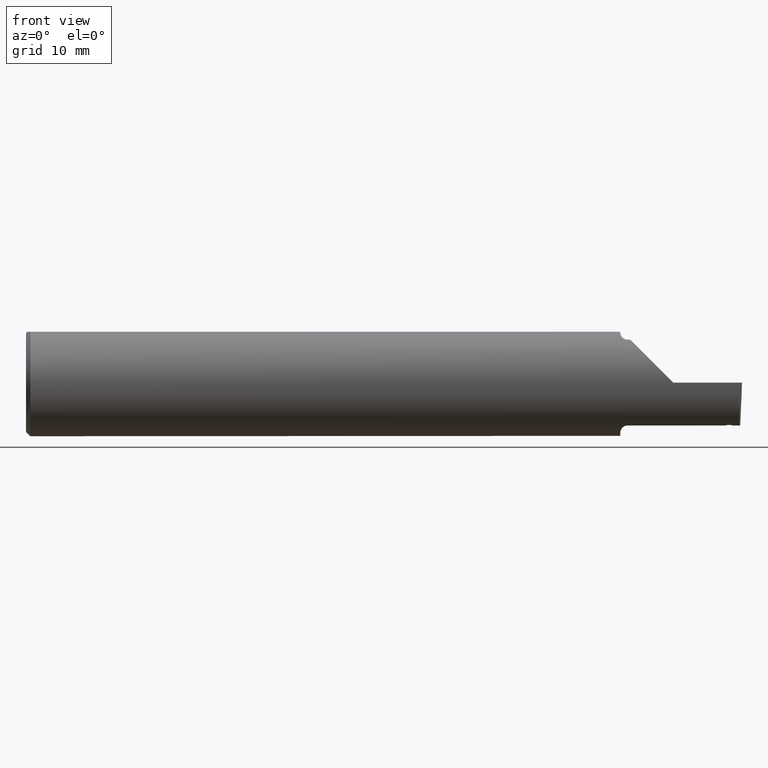
[diagram: clean part render]
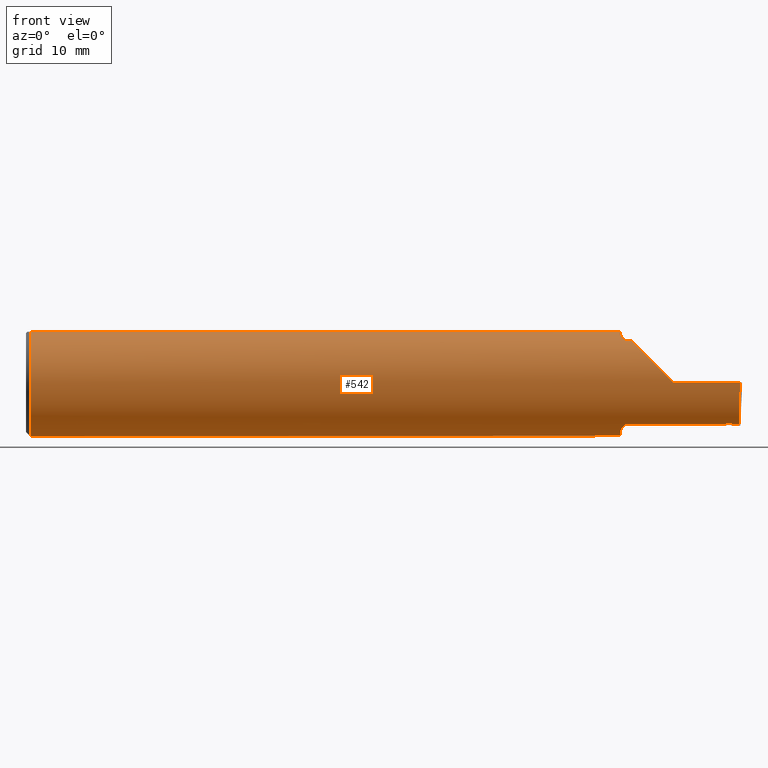
[diagram: same view with one face highlighted and labeled with its STEP entity id]
A machine part, front view. The second image highlights one B-rep face of the part: STEP entity #542.
In plain terms, the highlighted cylindrical surface (partial cylindrical patch) has radius 4.7587 mm, axis along (-1, -0, -0).
Its self-contained STEP definition (entity closure, byte-faithful):
#6 = VERTEX_POINT ( 'NONE', #318 ) ;
#7 = CARTESIAN_POINT ( 'NONE',  ( 2.277499999999999858, -0.1172600179964007477, -0.1461167706989302817 ) ) ;
#11 = VERTEX_POINT ( 'NONE', #26 ) ;
#12 = CARTESIAN_POINT ( 'NONE',  ( 2.076829077486399555, -0.08839624499054647699, 0.1652742498708037744 ) ) ;
#14 = CARTESIAN_POINT ( 'NONE',  ( 2.465157082534517485, -0.1172600179964006784, -0.1461167706989302539 ) ) ;
#18 = CARTESIAN_POINT ( 'NONE',  ( 2.094481469043492528, -0.1163560528186165649, 0.1468472430636323101 ) ) ;
#25 = CARTESIAN_POINT ( 'NONE',  ( 2.493506715846705468, -0.1873499999999999888, 0.000000000000000000 ) ) ;
#26 = CARTESIAN_POINT ( 'NONE',  ( 2.459970630616510778, -0.1208515442419981767, -0.1431604929941369120 ) ) ;
#28 = LINE ( 'NONE', #873, #102 ) ;
#34 = CARTESIAN_POINT ( 'NONE',  ( 0.000000000000000000, -0.06039039658753697637, 0.1773499999999999799 ) ) ;
#41 = AXIS2_PLACEMENT_3D ( 'NONE', #417, #345, #327 ) ;
#48 = DIRECTION ( 'NONE',  ( 0.000000000000000000, 0.000000000000000000, 1.000000000000000000 ) ) ;
#50 = EDGE_LOOP ( 'NONE', ( #500, #199, #71, #234, #281, #295, #707, #288, #862, #534, #307, #765, #130, #161, #300, #794, #424 ) ) ;
#61 = CARTESIAN_POINT ( 'NONE',  ( 2.075000000000000178, -0.06851976604679065053, -0.1743704796142198643 ) ) ;
#62 = VERTEX_POINT ( 'NONE', #464 ) ;
#71 = ORIENTED_EDGE ( 'NONE', *, *, #180, .T. ) ;
#72 = EDGE_CURVE ( 'NONE', #6, #88, #151, .T. ) ;
#78 = CARTESIAN_POINT ( 'NONE',  ( 2.075353553376444893, -0.07868116735658677030, 0.1701139256562800572 ) ) ;
#82 = CARTESIAN_POINT ( 'NONE',  ( 2.097161949849308371, -0.1172600179964061462, 0.1461167706989260351 ) ) ;
#83 = VECTOR ( 'NONE', #107, 39.37007874015748143 ) ;
#85 = EDGE_CURVE ( 'NONE', #552, #62, #314, .T. ) ;
#86 = VECTOR ( 'NONE', #279, 39.37007874015748143 ) ;
#88 = VERTEX_POINT ( 'NONE', #209 ) ;
#102 = VECTOR ( 'NONE', #441, 39.37007874015748143 ) ;
#107 = DIRECTION ( 'NONE',  ( -1.000000000000000000, -0.000000000000000000, -0.000000000000000000 ) ) ;
#116 = CARTESIAN_POINT ( 'NONE',  ( 2.491992669264299742, -0.1873499999999999888, -0.05781030015605114619 ) ) ;
#130 = ORIENTED_EDGE ( 'NONE', *, *, #72, .F. ) ;
#133 = CARTESIAN_POINT ( 'NONE',  ( 2.100000000000000089, -0.1172600179964007477, 0.1461167706989303094 ) ) ;
#141 = EDGE_CURVE ( 'NONE', #176, #11, #487, .T. ) ;
#148 = CIRCLE ( 'NONE', #268, 0.1873499999999999888 ) ;
#151 = B_SPLINE_CURVE_WITH_KNOTS ( 'NONE', 3,
 ( #321, #600, #253, #555, #423, #274, #351, #902, #843, #408, #420, #61 ),
 .UNSPECIFIED., .F., .F.,
 ( 4, 2, 2, 2, 2, 4 ),
 ( 1.967976973658592312E-07, 0.0002120314145722268929, 0.0004238660314470878913, 0.0008475352651967990461, 0.001271204498946510147, 0.001694873732696221356 ),
 .UNSPECIFIED. ) ;
#158 = EDGE_CURVE ( 'NONE', #336, #841, #849, .T. ) ;
#159 = CARTESIAN_POINT ( 'NONE',  ( 2.083475602106621860, -0.1064978748893405658, 0.1542035505680383611 ) ) ;
#161 = ORIENTED_EDGE ( 'NONE', *, *, #844, .F. ) ;
#170 = VERTEX_POINT ( 'NONE', #25 ) ;
#176 = VERTEX_POINT ( 'NONE', #14 ) ;
#180 = EDGE_CURVE ( 'NONE', #170, #703, #749, .T. ) ;
#189 = EDGE_CURVE ( 'NONE', #62, #792, #398, .T. ) ;
#190 = CARTESIAN_POINT ( 'NONE',  ( 0.01499999999999756042, 0.06039039658754215278, 0.1773499999999999799 ) ) ;
#199 = ORIENTED_EDGE ( 'NONE', *, *, #476, .T. ) ;
#202 = CARTESIAN_POINT ( 'NONE',  ( 2.452498061677415020, -0.1204031018442653922, -0.1435379292246290739 ) ) ;
#209 = CARTESIAN_POINT ( 'NONE',  ( 2.075000000000000178, -0.06851976604679065053, -0.1743704796142198643 ) ) ;
#211 = B_SPLINE_CURVE_WITH_KNOTS ( 'NONE', 3,
 ( #720, #522, #78, #12, #644, #513, #159, #446, #724, #18, #82, #375 ),
 .UNSPECIFIED., .F., .F.,
 ( 4, 2, 2, 2, 2, 4 ),
 ( 4.423516731080786679E-05, 0.0004615475116586702708, 0.0008788598560065326477, 0.001296172200354395133, 0.001504828372528326267, 0.001713484544702257402 ),
 .UNSPECIFIED. ) ;
#216 = VECTOR ( 'NONE', #323, 39.37007874015748143 ) ;
#218 = CARTESIAN_POINT ( 'NONE',  ( 2.075000000000000178, -0.06851976604679065053, 0.1743704796142198643 ) ) ;
#229 = CARTESIAN_POINT ( 'NONE',  ( 2.490903355898018923, -0.1172600179964007477, -0.1461167706989302817 ) ) ;
#234 = ORIENTED_EDGE ( 'NONE', *, *, #396, .T. ) ;
#248 = CARTESIAN_POINT ( 'NONE',  ( 2.462366680899263027, -0.1203677650156517315, -0.1435703392140194878 ) ) ;
#253 = CARTESIAN_POINT ( 'NONE',  ( 2.094511795768554396, -0.1163687266324235081, -0.1468371510166789073 ) ) ;
#266 = CARTESIAN_POINT ( 'NONE',  ( 0.01499999999999999944, 0.000000000000000000, 0.000000000000000000 ) ) ;
#268 = AXIS2_PLACEMENT_3D ( 'NONE', #689, #701, #480 ) ;
#274 = CARTESIAN_POINT ( 'NONE',  ( 2.083439486659307338, -0.1064616213911158960, -0.1542305641651499359 ) ) ;
#279 = DIRECTION ( 'NONE',  ( -1.000000000000000000, -4.493171042210958884E-17, -0.000000000000000000 ) ) ;
#281 = ORIENTED_EDGE ( 'NONE', *, *, #885, .F. ) ;
#285 = B_SPLINE_CURVE_WITH_KNOTS ( 'NONE', 3,
 ( #904, #543, #412, #676, #762, #202, #397, #614, #672, #752 ),
 .UNSPECIFIED., .F., .F.,
 ( 4, 3, 3, 4 ),
 ( 2.784015005631585300E-17, 9.519312269084640951E-05, 0.0002379828151243503409, 0.0003807725157308754649 ),
 .UNSPECIFIED. ) ;
#288 = ORIENTED_EDGE ( 'NONE', *, *, #189, .F. ) ;
#292 = VERTEX_POINT ( 'NONE', #133 ) ;
#295 = ORIENTED_EDGE ( 'NONE', *, *, #899, .F. ) ;
#300 = ORIENTED_EDGE ( 'NONE', *, *, #158, .F. ) ;
#303 = CARTESIAN_POINT ( 'NONE',  ( 2.444107737563205873, -0.1181638109593892566, -0.1453914687462651567 ) ) ;
#307 = ORIENTED_EDGE ( 'NONE', *, *, #504, .F. ) ;
#314 = CIRCLE ( 'NONE', #892, 0.1873499999999999888 ) ;
#316 = AXIS2_PLACEMENT_3D ( 'NONE', #601, #470, #605 ) ;
#318 = CARTESIAN_POINT ( 'NONE',  ( 2.100000000000000089, -0.1172600179964006784, -0.1461167706989303094 ) ) ;
#320 = CARTESIAN_POINT ( 'NONE',  ( 2.464039528729736528, -0.1189754524816910852, -0.1447262341929363427 ) ) ;
#321 = CARTESIAN_POINT ( 'NONE',  ( 2.100000000000000089, -0.1172600179964006784, -0.1461167706989303094 ) ) ;
#322 = CYLINDRICAL_SURFACE ( 'NONE', #316, 0.1873499999999999888 ) ;
#323 = DIRECTION ( 'NONE',  ( 1.000000000000000000, 0.000000000000000000, 0.000000000000000000 ) ) ;
#324 = EDGE_CURVE ( 'NONE', #88, #686, #148, .T. ) ;
#327 = DIRECTION ( 'NONE',  ( 0.000000000000000000, 1.000000000000000000, 0.000000000000000000 ) ) ;
#336 = VERTEX_POINT ( 'NONE', #758 ) ;
#338 = EDGE_CURVE ( 'NONE', #520, #552, #389, .T. ) ;
#339 = CARTESIAN_POINT ( 'NONE',  ( 2.493506715846705468, -0.1873499999999999888, 0.000000000000000000 ) ) ;
#345 = DIRECTION ( 'NONE',  ( 1.000000000000000000, 4.493171042210958884E-17, 0.000000000000000000 ) ) ;
#349 = CARTESIAN_POINT ( 'NONE',  ( 2.277499999999999858, -0.1172600179964007477, -0.1461167706989302817 ) ) ;
#351 = CARTESIAN_POINT ( 'NONE',  ( 2.081304331342287650, -0.1022198306720690925, -0.1570962426853818039 ) ) ;
#362 = VERTEX_POINT ( 'NONE', #229 ) ;
#375 = CARTESIAN_POINT ( 'NONE',  ( 2.100000000000000089, -0.1172600179964007477, 0.1461167706989303094 ) ) ;
#389 = CIRCLE ( 'NONE', #633, 0.1873499999999999888 ) ;
#390 = CARTESIAN_POINT ( 'NONE',  ( 2.202189699843949633, -0.1873500000000000998, 0.05781030015605104211 ) ) ;
#396 = EDGE_CURVE ( 'NONE', #703, #629, #802, .T. ) ;
#397 = CARTESIAN_POINT ( 'NONE',  ( 2.450629942783126403, -0.1202905323675130395, -0.1436322050333429245 ) ) ;
#398 = LINE ( 'NONE', #34, #216 ) ;
#408 = CARTESIAN_POINT ( 'NONE',  ( 2.075358271039144498, -0.07873626113568084339, -0.1700887912276897174 ) ) ;
#412 = CARTESIAN_POINT ( 'NONE',  ( 2.457479760626976706, -0.1207023328153187663, -0.1432863527967780659 ) ) ;
#414 = CARTESIAN_POINT ( 'NONE',  ( 0.01499999999999999944, 0.000000000000000000, 0.000000000000000000 ) ) ;
#417 = CARTESIAN_POINT ( 'NONE',  ( 2.075000000000000178, 0.000000000000000000, 0.000000000000000000 ) ) ;
#420 = CARTESIAN_POINT ( 'NONE',  ( 2.075000000000000622, -0.07368234487347197215, -0.1723418180300748392 ) ) ;
#423 = CARTESIAN_POINT ( 'NONE',  ( 2.088203859946834218, -0.1120371980050639121, -0.1501764597936558754 ) ) ;
#424 = ORIENTED_EDGE ( 'NONE', *, *, #141, .F. ) ;
#441 = DIRECTION ( 'NONE',  ( 1.000000000000000000, 4.493171042210958884E-17, 0.000000000000000000 ) ) ;
#446 = CARTESIAN_POINT ( 'NONE',  ( 2.088163223656403389, -0.1119926267047277463, 0.1502091925606063305 ) ) ;
#452 = CIRCLE ( 'NONE', #41, 0.1873499999999999888 ) ;
#453 = CARTESIAN_POINT ( 'NONE',  ( 2.445025619349034507, -0.1199521637390634637, -0.1439149085894748381 ) ) ;
#463 = CARTESIAN_POINT ( 'NONE',  ( 2.465157082534517485, -0.1172600179964006784, -0.1461167706989302539 ) ) ;
#464 = CARTESIAN_POINT ( 'NONE',  ( 0.01499999999999999944, -0.06039039658753697637, 0.1773499999999999799 ) ) ;
#467 = CARTESIAN_POINT ( 'NONE',  ( 3.749399456654646757E-32, -0.1873499999999999888, 3.061616997868384127E-16 ) ) ;
#470 = DIRECTION ( 'NONE',  ( -1.000000000000000000, -0.000000000000000000, -0.000000000000000000 ) ) ;
#476 = EDGE_CURVE ( 'NONE', #362, #170, #832, .T. ) ;
#480 = DIRECTION ( 'NONE',  ( 0.000000000000000000, 1.000000000000000000, 0.000000000000000000 ) ) ;
#487 = B_SPLINE_CURVE_WITH_KNOTS ( 'NONE', 3,
 ( #463, #673, #320, #248, #729, #799 ),
 .UNSPECIFIED., .F., .F.,
 ( 4, 2, 4 ),
 ( 0.0002880341540451837818, 0.0003798726319058791422, 0.0004717111097665745026 ),
 .UNSPECIFIED. ) ;
#500 = ORIENTED_EDGE ( 'NONE', *, *, #788, .F. ) ;
#504 = EDGE_CURVE ( 'NONE', #686, #520, #889, .T. ) ;
#513 = CARTESIAN_POINT ( 'NONE',  ( 2.081287624083520527, -0.1021858045380145130, 0.1571187174372875861 ) ) ;
#520 = VERTEX_POINT ( 'NONE', #190 ) ;
#522 = CARTESIAN_POINT ( 'NONE',  ( 2.074999999999999289, -0.07367581953296699349, 0.1723443821957854893 ) ) ;
#528 = CARTESIAN_POINT ( 'NONE',  ( 2.444567321465221710, -0.1190612593473730080, -0.1446574717506879937 ) ) ;
#529 = EDGE_CURVE ( 'NONE', #11, #336, #285, .T. ) ;
#534 = ORIENTED_EDGE ( 'NONE', *, *, #338, .F. ) ;
#542 = ADVANCED_FACE ( 'NONE', ( #547 ), #322, .T. ) ;
#543 = CARTESIAN_POINT ( 'NONE',  ( 2.458725193120458563, -0.1207769875284975258, -0.1432234314052287516 ) ) ;
#547 = FACE_OUTER_BOUND ( 'NONE', #50, .T. ) ;
#548 = DIRECTION ( 'NONE',  ( -1.000000000000000000, -0.000000000000000000, -0.000000000000000000 ) ) ;
#552 = VERTEX_POINT ( 'NONE', #895 ) ;
#553 = CARTESIAN_POINT ( 'NONE',  ( 0.000000000000000000, 0.06039039658753697637, 0.1773499999999999799 ) ) ;
#555 = CARTESIAN_POINT ( 'NONE',  ( 2.090028532764138358, -0.1137241120808236139, -0.1488947809299403513 ) ) ;
#561 = CARTESIAN_POINT ( 'NONE',  ( 2.075000000000000178, -0.06039039658753699025, 0.1773499999999999799 ) ) ;
#594 = EDGE_CURVE ( 'NONE', #792, #711, #452, .T. ) ;
#600 = CARTESIAN_POINT ( 'NONE',  ( 2.097174967710399240, -0.1172600179964006784, -0.1461167706989303650 ) ) ;
#601 = CARTESIAN_POINT ( 'NONE',  ( 0.000000000000000000, 0.000000000000000000, 0.000000000000000000 ) ) ;
#605 = DIRECTION ( 'NONE',  ( 0.000000000000000000, 0.000000000000000000, 1.000000000000000000 ) ) ;
#610 = CARTESIAN_POINT ( 'NONE',  ( 2.491063981715931686, -0.1623470442677541759, -0.1099340280425337851 ) ) ;
#612 = DIRECTION ( 'NONE',  ( 0.000000000000000000, 0.000000000000000000, 1.000000000000000000 ) ) ;
#614 = CARTESIAN_POINT ( 'NONE',  ( 2.448761823781913982, -0.1201779628843176462, -0.1437264808474527644 ) ) ;
#629 = VERTEX_POINT ( 'NONE', #854 ) ;
#633 = AXIS2_PLACEMENT_3D ( 'NONE', #266, #548, #48 ) ;
#644 = CARTESIAN_POINT ( 'NONE',  ( 2.077945243422983701, -0.09312071749437424162, 0.1626553472577906279 ) ) ;
#654 = CARTESIAN_POINT ( 'NONE',  ( 2.443647039189707826, -0.1172600179964006784, -0.1461167706989303094 ) ) ;
#662 = CARTESIAN_POINT ( 'NONE',  ( 2.443647039189707826, -0.1172600179964006784, -0.1461167706989303094 ) ) ;
#672 = CARTESIAN_POINT ( 'NONE',  ( 2.446893715973688987, -0.1200651732630455687, -0.1438207158678338204 ) ) ;
#673 = CARTESIAN_POINT ( 'NONE',  ( 2.464654264848856080, -0.1181371930991202690, -0.1454128298176823597 ) ) ;
#676 = CARTESIAN_POINT ( 'NONE',  ( 2.456234333133729741, -0.1206275801654830004, -0.1433492567243372096 ) ) ;
#686 = VERTEX_POINT ( 'NONE', #708 ) ;
#688 = CARTESIAN_POINT ( 'NONE',  ( 2.490903355898018923, -0.1172600179964007477, -0.1461167706989302817 ) ) ;
#689 = CARTESIAN_POINT ( 'NONE',  ( 2.075000000000000178, 0.000000000000000000, 0.000000000000000000 ) ) ;
#701 = DIRECTION ( 'NONE',  ( 1.000000000000000000, 4.493171042210958884E-17, 0.000000000000000000 ) ) ;
#702 = VECTOR ( 'NONE', #727, 39.37007874015748143 ) ;
#703 = VERTEX_POINT ( 'NONE', #712 ) ;
#707 = ORIENTED_EDGE ( 'NONE', *, *, #594, .F. ) ;
#708 = CARTESIAN_POINT ( 'NONE',  ( 2.075000000000000178, 0.06039039658754216666, 0.1773499999999999799 ) ) ;
#711 = VERTEX_POINT ( 'NONE', #218 ) ;
#712 = CARTESIAN_POINT ( 'NONE',  ( 2.260000000000000231, -0.1873499999999999888, 2.939152317953647352E-17 ) ) ;
#720 = CARTESIAN_POINT ( 'NONE',  ( 2.075000000000000178, -0.06851976604679065053, 0.1743704796142198643 ) ) ;
#724 = CARTESIAN_POINT ( 'NONE',  ( 2.090004157323697598, -0.1137044537483316159, 0.1489098419202428691 ) ) ;
#727 = DIRECTION ( 'NONE',  ( -1.000000000000000000, -4.493171042210958884E-17, -0.000000000000000000 ) ) ;
#729 = CARTESIAN_POINT ( 'NONE',  ( 2.461215914213424671, -0.1209260915574918022, -0.1430975625165445964 ) ) ;
#739 = CARTESIAN_POINT ( 'NONE',  ( 2.150065971957467070, -0.1623470442677541759, 0.1099340280425336880 ) ) ;
#743 = CARTESIAN_POINT ( 'NONE',  ( 2.113883229301070532, -0.1172600179964006645, 0.1461167706989302539 ) ) ;
#749 = LINE ( 'NONE', #467, #83 ) ;
#752 = CARTESIAN_POINT ( 'NONE',  ( 2.445025619349034507, -0.1199521637390634637, -0.1439149085894748381 ) ) ;
#758 = CARTESIAN_POINT ( 'NONE',  ( 2.445025619349034507, -0.1199521637390634637, -0.1439149085894748381 ) ) ;
#762 = CARTESIAN_POINT ( 'NONE',  ( 2.454366191791422569, -0.1205154511845809295, -0.1434436126208497864 ) ) ;
#765 = ORIENTED_EDGE ( 'NONE', *, *, #324, .F. ) ;
#788 = EDGE_CURVE ( 'NONE', #362, #176, #918, .T. ) ;
#792 = VERTEX_POINT ( 'NONE', #561 ) ;
#794 = ORIENTED_EDGE ( 'NONE', *, *, #529, .F. ) ;
#799 = CARTESIAN_POINT ( 'NONE',  ( 2.459970630616510778, -0.1208515442419981767, -0.1431604929941369120 ) ) ;
#802 =( BOUNDED_CURVE ( )  B_SPLINE_CURVE ( 3, ( #815, #390, #739, #743 ),
 .UNSPECIFIED., .F., .T. ) 
 B_SPLINE_CURVE_WITH_KNOTS ( ( 4, 4 ),
 ( 4.712388980384688786, 5.606916381293136631 ),
 .UNSPECIFIED. ) 
 CURVE ( )  GEOMETRIC_REPRESENTATION_ITEM ( )  RATIONAL_B_SPLINE_CURVE ( ( 1.000000000000000000, 0.9344226172588802060, 0.9344226172588802060, 1.000000000000000000 ) ) 
 REPRESENTATION_ITEM ( '' )  );
#815 = CARTESIAN_POINT ( 'NONE',  ( 2.260000000000000231, -0.1873499999999999888, 2.939152317953647352E-17 ) ) ;
#823 = DIRECTION ( 'NONE',  ( -1.000000000000000000, -0.000000000000000000, -0.000000000000000000 ) ) ;
#832 =( BOUNDED_CURVE ( )  B_SPLINE_CURVE ( 3, ( #688, #610, #116, #339 ),
 .UNSPECIFIED., .F., .F. ) 
 B_SPLINE_CURVE_WITH_KNOTS ( ( 4, 4 ),
 ( 0.08839520912052888091, 0.9829226100289757406 ),
 .UNSPECIFIED. ) 
 CURVE ( )  GEOMETRIC_REPRESENTATION_ITEM ( )  RATIONAL_B_SPLINE_CURVE ( ( 1.000000000000000000, 0.9344226172588803170, 0.9344226172588803170, 1.000000000000000000 ) ) 
 REPRESENTATION_ITEM ( '' )  );
#840 = DIRECTION ( 'NONE',  ( -1.000000000000000000, -0.000000000000000000, -0.000000000000000000 ) ) ;
#841 = VERTEX_POINT ( 'NONE', #654 ) ;
#843 = CARTESIAN_POINT ( 'NONE',  ( 2.076843912362377864, -0.08846956905169091334, -0.1652353808078971809 ) ) ;
#844 = EDGE_CURVE ( 'NONE', #841, #6, #878, .T. ) ;
#849 = B_SPLINE_CURVE_WITH_KNOTS ( 'NONE', 3,
 ( #453, #528, #303, #662 ),
 .UNSPECIFIED., .F., .F.,
 ( 4, 4 ),
 ( 6.133173666733496745E-19, 9.502270578082793167E-05 ),
 .UNSPECIFIED. ) ;
#854 = CARTESIAN_POINT ( 'NONE',  ( 2.113883229301070532, -0.1172600179964006645, 0.1461167706989302539 ) ) ;
#862 = ORIENTED_EDGE ( 'NONE', *, *, #85, .F. ) ;
#873 = CARTESIAN_POINT ( 'NONE',  ( 2.277499999999999858, -0.1172600179964007477, 0.1461167706989302817 ) ) ;
#877 = VECTOR ( 'NONE', #823, 39.37007874015748143 ) ;
#878 = LINE ( 'NONE', #7, #702 ) ;
#885 = EDGE_CURVE ( 'NONE', #292, #629, #28, .T. ) ;
#889 = LINE ( 'NONE', #553, #877 ) ;
#892 = AXIS2_PLACEMENT_3D ( 'NONE', #414, #840, #612 ) ;
#895 = CARTESIAN_POINT ( 'NONE',  ( 0.01499999999999999944, 0.000000000000000000, -0.1873499999999999888 ) ) ;
#899 = EDGE_CURVE ( 'NONE', #711, #292, #211, .T. ) ;
#902 = CARTESIAN_POINT ( 'NONE',  ( 2.077960551809340473, -0.09317341542745748162, -0.1626248379125196930 ) ) ;
#904 = CARTESIAN_POINT ( 'NONE',  ( 2.459970630616510778, -0.1208515442419981767, -0.1431604929941369120 ) ) ;
#918 = LINE ( 'NONE', #349, #86 ) ;